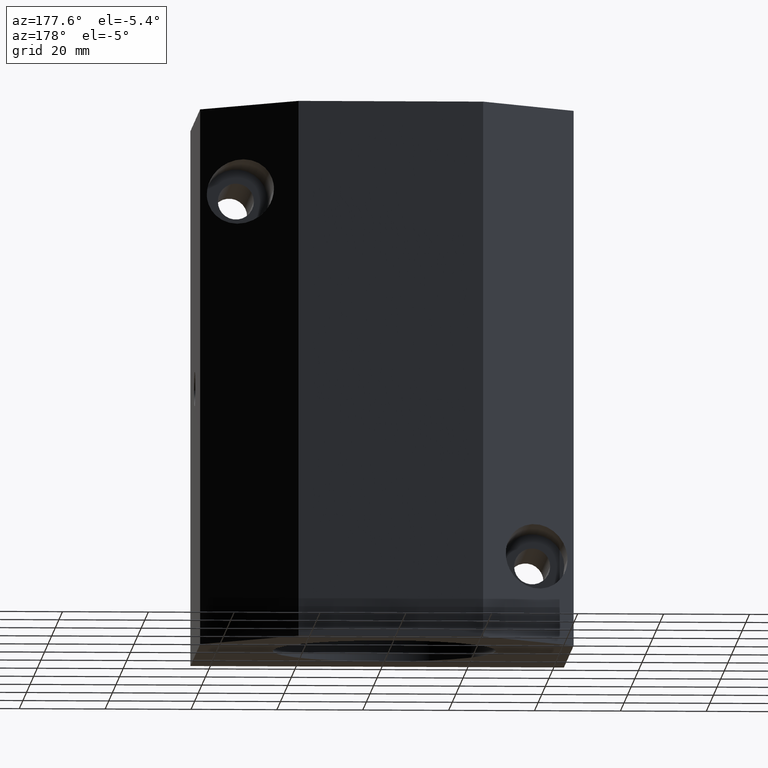
[diagram: clean part render]
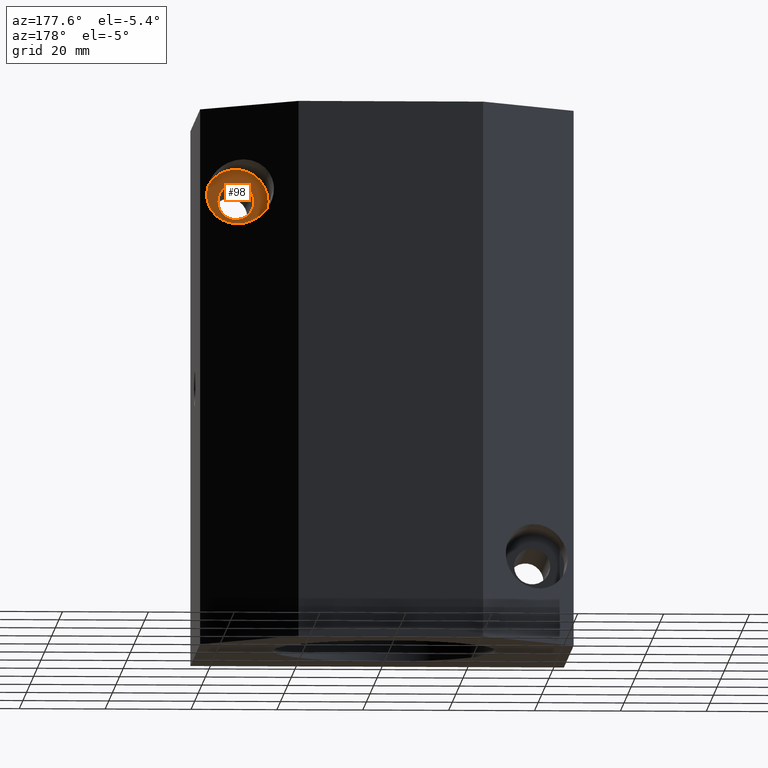
[diagram: same view with one face highlighted and labeled with its STEP entity id]
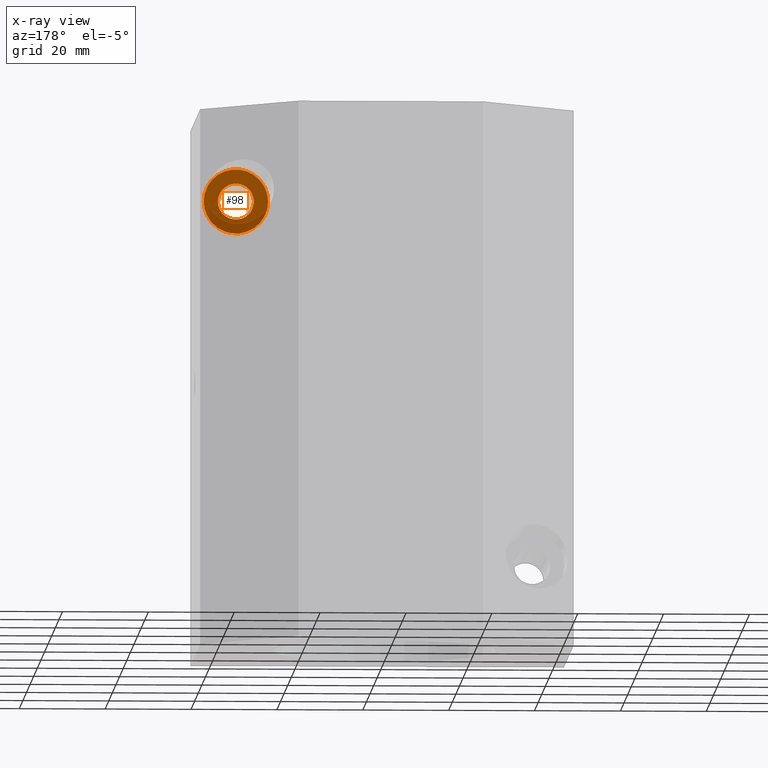
[diagram: x-ray of the same camera — body ghosted, the highlighted face saturated]
A machine part, auxiliary view. The second image highlights one B-rep face of the part: STEP entity #98.
The next image is the same camera in x-ray: the body ghosted, the highlighted face saturated — about 24% of this face is hidden behind the body in this view.
In plain terms, the highlighted planar face has unit normal (-0, -1, 0).
Its self-contained STEP definition (entity closure, byte-faithful):
#98 = ADVANCED_FACE( '', ( #160, #161 ), #162, .F. );
#160 = FACE_OUTER_BOUND( '', #240, .T. );
#161 = FACE_BOUND( '', #241, .T. );
#162 = PLANE( '', #242 );
#240 = EDGE_LOOP( '', ( #433, #434 ) );
#241 = EDGE_LOOP( '', ( #435, #436 ) );
#242 = AXIS2_PLACEMENT_3D( '', #437, #438, #439 );
#433 = ORIENTED_EDGE( '', *, *, #537, .T. );
#434 = ORIENTED_EDGE( '', *, *, #584, .T. );
#435 = ORIENTED_EDGE( '', *, *, #539, .F. );
#436 = ORIENTED_EDGE( '', *, *, #583, .F. );
#437 = CARTESIAN_POINT( '', ( 40.3500000000000, 38.0000000000000, 105.000000000000 ) );
#438 = DIRECTION( '', ( -0.000000000000000, -1.00000000000000, 0.000000000000000 ) );
#439 = DIRECTION( '', ( -1.00000000000000, 0.000000000000000, 2.44921270764475E-016 ) );
#537 = EDGE_CURVE( '', #619, #623, #625, .T. );
#539 = EDGE_CURVE( '', #626, #629, #630, .T. );
#583 = EDGE_CURVE( '', #629, #626, #699, .T. );
#584 = EDGE_CURVE( '', #623, #619, #700, .T. );
#619 = VERTEX_POINT( '', #815 );
#623 = VERTEX_POINT( '', #820 );
#625 = CIRCLE( '', #823, 7.50000000000000 );
#626 = VERTEX_POINT( '', #824 );
#629 = VERTEX_POINT( '', #828 );
#630 = CIRCLE( '', #829, 4.20000000000000 );
#699 = CIRCLE( '', #915, 4.20000000000000 );
#700 = CIRCLE( '', #916, 7.50000000000000 );
#815 = CARTESIAN_POINT( '', ( 42.0000000000000, 38.0000000000000, 105.000000000000 ) );
#820 = CARTESIAN_POINT( '', ( 27.0000000000000, 38.0000000000000, 105.000000000000 ) );
#823 = AXIS2_PLACEMENT_3D( '', #981, #982, #983 );
#824 = CARTESIAN_POINT( '', ( 38.7000000000000, 38.0000000000000, 105.000000000000 ) );
#828 = CARTESIAN_POINT( '', ( 30.3000000000000, 38.0000000000000, 105.000000000000 ) );
#829 = AXIS2_PLACEMENT_3D( '', #985, #986, #987 );
#915 = AXIS2_PLACEMENT_3D( '', #1083, #1084, #1085 );
#916 = AXIS2_PLACEMENT_3D( '', #1086, #1087, #1088 );
#981 = CARTESIAN_POINT( '', ( 34.5000000000000, 38.0000000000000, 105.000000000000 ) );
#982 = DIRECTION( '', ( -0.000000000000000, 1.00000000000000, 0.000000000000000 ) );
#983 = DIRECTION( '', ( 1.00000000000000, 0.000000000000000, 0.000000000000000 ) );
#985 = CARTESIAN_POINT( '', ( 34.5000000000000, 38.0000000000000, 105.000000000000 ) );
#986 = DIRECTION( '', ( -0.000000000000000, 1.00000000000000, 0.000000000000000 ) );
#987 = DIRECTION( '', ( 1.00000000000000, 0.000000000000000, 0.000000000000000 ) );
#1083 = CARTESIAN_POINT( '', ( 34.5000000000000, 38.0000000000000, 105.000000000000 ) );
#1084 = DIRECTION( '', ( -0.000000000000000, 1.00000000000000, 0.000000000000000 ) );
#1085 = DIRECTION( '', ( 1.00000000000000, 0.000000000000000, 0.000000000000000 ) );
#1086 = CARTESIAN_POINT( '', ( 34.5000000000000, 38.0000000000000, 105.000000000000 ) );
#1087 = DIRECTION( '', ( -0.000000000000000, 1.00000000000000, 0.000000000000000 ) );
#1088 = DIRECTION( '', ( 1.00000000000000, 0.000000000000000, 0.000000000000000 ) );